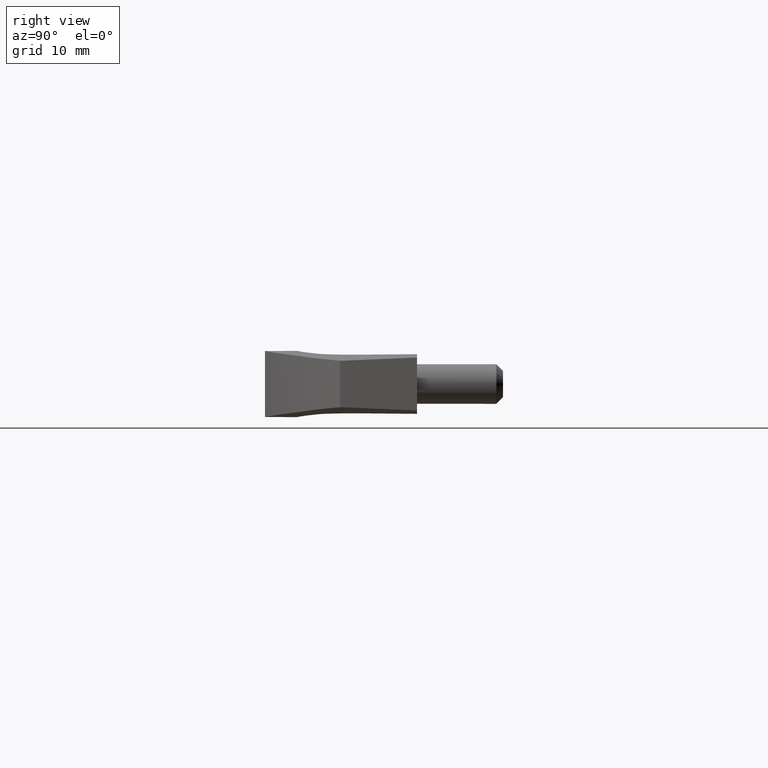
[diagram: clean part render]
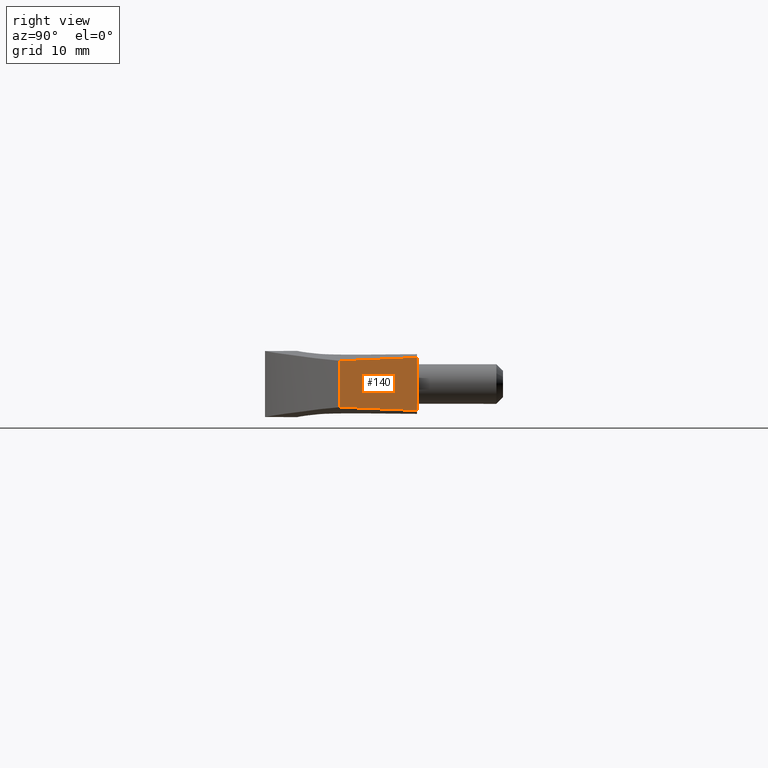
[diagram: same view with one face highlighted and labeled with its STEP entity id]
A machine part, right view. The second image highlights one B-rep face of the part: STEP entity #140.
In plain terms, the highlighted planar face has unit normal (0.9963, -0.0857, -0).
Its self-contained STEP definition (entity closure, byte-faithful):
#140=ADVANCED_FACE('',(#338),#337,.T.);
#337=PLANE('',#652);
#338=FACE_OUTER_BOUND('',#653,.T.);
#649=CARTESIAN_POINT('',(5.09005624052E+01,-4.80000000000E+00,1.27856746014E+01));
#650=DIRECTION('',(9.96319928222E-01,-3.16710856011E-14,8.57123131643E-02));
#651=DIRECTION('',(8.57123131643E-02,3.94430452611E-31,-9.96319928222E-01));
#652=AXIS2_PLACEMENT_3D('',#649,#650,#651);
#653=EDGE_LOOP('',(#776,#777,#778,#779));
#776=ORIENTED_EDGE('',*,*,#857,.T.);
#777=ORIENTED_EDGE('',*,*,#842,.T.);
#778=ORIENTED_EDGE('',*,*,#858,.T.);
#779=ORIENTED_EDGE('',*,*,#829,.T.);
#829=EDGE_CURVE('',#1062,#1055,#1063,.T.);
#842=EDGE_CURVE('',#1138,#1145,#1152,.T.);
#857=EDGE_CURVE('',#1055,#1138,#1250,.T.);
#858=EDGE_CURVE('',#1145,#1062,#1256,.T.);
#1055=VERTEX_POINT('',#1410);
#1062=VERTEX_POINT('',#1416);
#1063=LINE('',#1417,#1418);
#1138=VERTEX_POINT('',#1470);
#1145=VERTEX_POINT('',#1537);
#1152=LINE('',#1604,#1605);
#1250=LINE('',#1877,#1878);
#1256=LINE('',#1880,#1881);
#1410=CARTESIAN_POINT('',(5.20005000000E+01,4.00000000000E+00,-8.88178400000E-13));
#1416=CARTESIAN_POINT('',(5.20005000000E+01,-4.00000000000E+00,-3.77475800000E-12));
#1417=CARTESIAN_POINT('',(5.20005000000E+01,-4.00000000000E+00,-3.77475800000E-12));
#1418=VECTOR('',#1419,8.00000000000E+00);
#1419=DIRECTION('',(0.00000000000E+00,1.00000000000E+00,3.60822450000E-13));
#1470=CARTESIAN_POINT('',(5.10005567320E+01,3.50002836602E+00,1.16233405467E+01));
#1537=CARTESIAN_POINT('',(5.10005567320E+01,-3.50002836602E+00,1.16233405467E+01));
#1604=CARTESIAN_POINT('',(5.10005567320E+01,3.50002836602E+00,1.16233405467E+01));
#1605=VECTOR('',#1606,7.00005673204E+00);
#1606=DIRECTION('',(-4.26322186295E-14,-1.00000000000E+00,1.72558980167E-14));
#1877=CARTESIAN_POINT('',(5.20005000000E+01,4.00000000000E+00,-8.88178400000E-13));
#1878=VECTOR('',#1879,1.16769817864E+01);
#1879=DIRECTION('',(-8.56337096564E-02,-4.28168548282E-02,9.95406241046E-01));
#1880=CARTESIAN_POINT('',(5.10005567320E+01,-3.50002836602E+00,1.16233405467E+01));
#1881=VECTOR('',#1882,1.16769817864E+01);
#1882=DIRECTION('',(8.56337096564E-02,-4.28168548282E-02,-9.95406241046E-01));